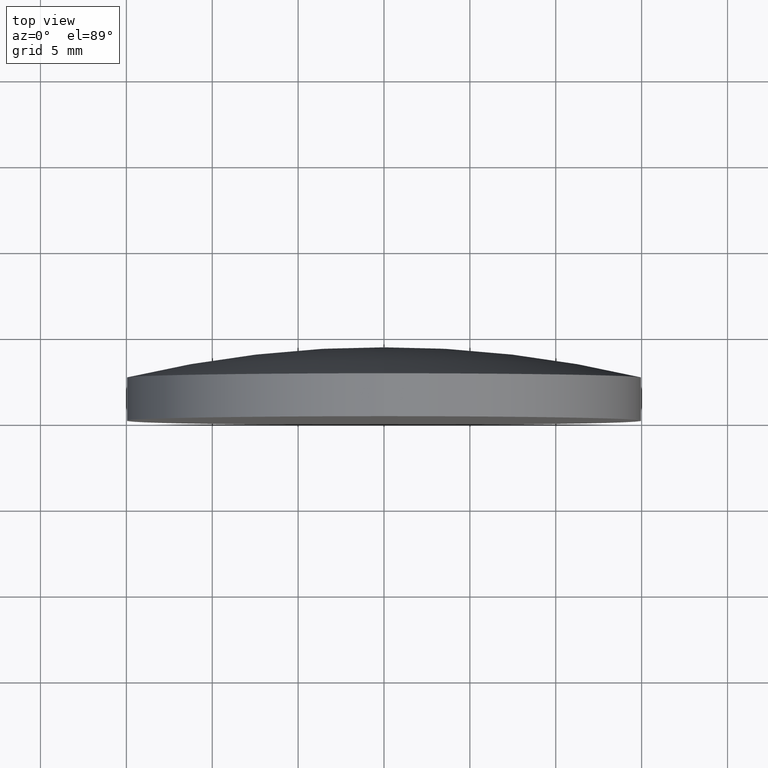
[diagram: clean part render]
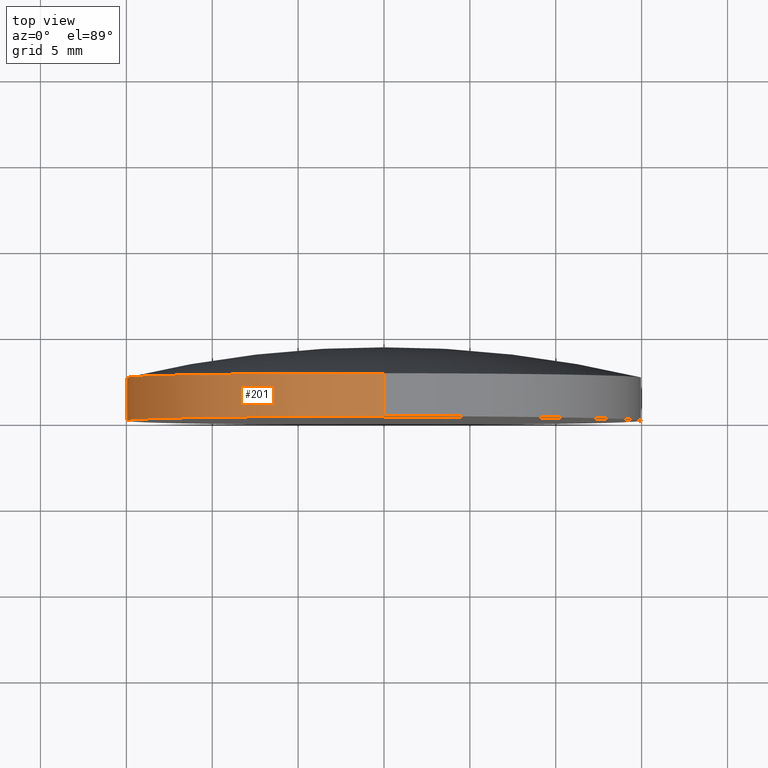
[diagram: same view with one face highlighted and labeled with its STEP entity id]
A machine part, top view. The second image highlights one B-rep face of the part: STEP entity #201.
In plain terms, the highlighted cylindrical surface (partial cylindrical patch) has radius 15 mm, axis along (-0, 1, -0).
Its self-contained STEP definition (entity closure, byte-faithful):
#10 = CARTESIAN_POINT ( 'NONE',  ( 1.836970198721029589E-15, -1.734723475976807094E-15, -15.00000000000000000 ) ) ;
#15 = EDGE_CURVE ( 'NONE', #75, #39, #90, .T. ) ;
#28 = CARTESIAN_POINT ( 'NONE',  ( 0.000000000000000000, -1.734723475976807094E-15, 15.00000000000000000 ) ) ;
#39 = VERTEX_POINT ( 'NONE', #193 ) ;
#44 = AXIS2_PLACEMENT_3D ( 'NONE', #150, #80, #135 ) ;
#50 = DIRECTION ( 'NONE',  ( -0.000000000000000000, 1.000000000000000000, -0.000000000000000000 ) ) ;
#58 = DIRECTION ( 'NONE',  ( -0.000000000000000000, 1.000000000000000000, -0.000000000000000000 ) ) ;
#63 = LINE ( 'NONE', #123, #180 ) ;
#69 = VECTOR ( 'NONE', #195, 1000.000000000000000 ) ;
#75 = VERTEX_POINT ( 'NONE', #10 ) ;
#79 = DIRECTION ( 'NONE',  ( 0.000000000000000000, 0.000000000000000000, 1.000000000000000000 ) ) ;
#80 = DIRECTION ( 'NONE',  ( -0.000000000000000000, 1.000000000000000000, -0.000000000000000000 ) ) ;
#82 = CIRCLE ( 'NONE', #44, 15.00000000000000000 ) ;
#83 = EDGE_CURVE ( 'NONE', #75, #148, #140, .T. ) ;
#90 = LINE ( 'NONE', #122, #69 ) ;
#93 = ORIENTED_EDGE ( 'NONE', *, *, #184, .T. ) ;
#101 = DIRECTION ( 'NONE',  ( 0.000000000000000000, 0.000000000000000000, 1.000000000000000000 ) ) ;
#102 = CARTESIAN_POINT ( 'NONE',  ( 0.000000000000000000, -1.734723475976807094E-15, 0.000000000000000000 ) ) ;
#108 = EDGE_LOOP ( 'NONE', ( #110, #121, #93, #160 ) ) ;
#110 = ORIENTED_EDGE ( 'NONE', *, *, #15, .F. ) ;
#114 = FACE_OUTER_BOUND ( 'NONE', #108, .T. ) ;
#120 = AXIS2_PLACEMENT_3D ( 'NONE', #125, #188, #101 ) ;
#121 = ORIENTED_EDGE ( 'NONE', *, *, #83, .T. ) ;
#122 = CARTESIAN_POINT ( 'NONE',  ( 1.836970198721029589E-15, 4.269999999999999574, -15.00000000000000000 ) ) ;
#123 = CARTESIAN_POINT ( 'NONE',  ( 0.000000000000000000, 4.269999999999999574, 15.00000000000000000 ) ) ;
#125 = CARTESIAN_POINT ( 'NONE',  ( 0.000000000000000000, 4.269999999999999574, 0.000000000000000000 ) ) ;
#135 = DIRECTION ( 'NONE',  ( 0.000000000000000000, 0.000000000000000000, 1.000000000000000000 ) ) ;
#140 = CIRCLE ( 'NONE', #157, 15.00000000000000000 ) ;
#148 = VERTEX_POINT ( 'NONE', #28 ) ;
#150 = CARTESIAN_POINT ( 'NONE',  ( 0.000000000000000000, 2.499999999999998224, 0.000000000000000000 ) ) ;
#157 = AXIS2_PLACEMENT_3D ( 'NONE', #102, #58, #79 ) ;
#158 = EDGE_CURVE ( 'NONE', #39, #176, #82, .T. ) ;
#160 = ORIENTED_EDGE ( 'NONE', *, *, #158, .F. ) ;
#172 = CYLINDRICAL_SURFACE ( 'NONE', #120, 15.00000000000000000 ) ;
#176 = VERTEX_POINT ( 'NONE', #199 ) ;
#180 = VECTOR ( 'NONE', #50, 1000.000000000000000 ) ;
#184 = EDGE_CURVE ( 'NONE', #148, #176, #63, .T. ) ;
#188 = DIRECTION ( 'NONE',  ( -0.000000000000000000, 1.000000000000000000, -0.000000000000000000 ) ) ;
#193 = CARTESIAN_POINT ( 'NONE',  ( 1.836970198721029589E-15, 2.500000000000000444, -15.00000000000000000 ) ) ;
#195 = DIRECTION ( 'NONE',  ( -0.000000000000000000, 1.000000000000000000, -0.000000000000000000 ) ) ;
#199 = CARTESIAN_POINT ( 'NONE',  ( 0.000000000000000000, 2.500000000000000444, 15.00000000000000000 ) ) ;
#201 = ADVANCED_FACE ( 'NONE', ( #114 ), #172, .T. ) ;